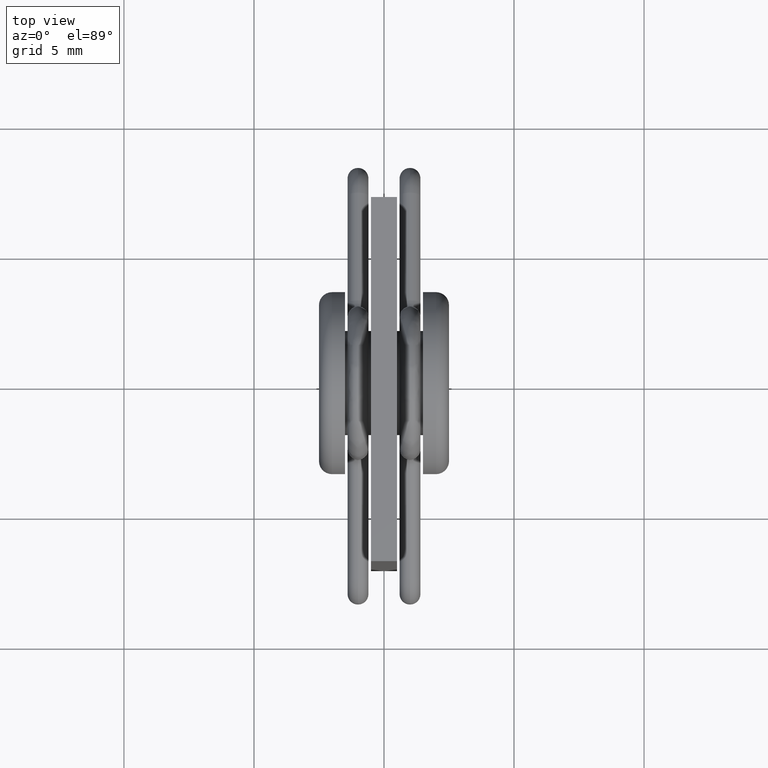
[diagram: clean part render]
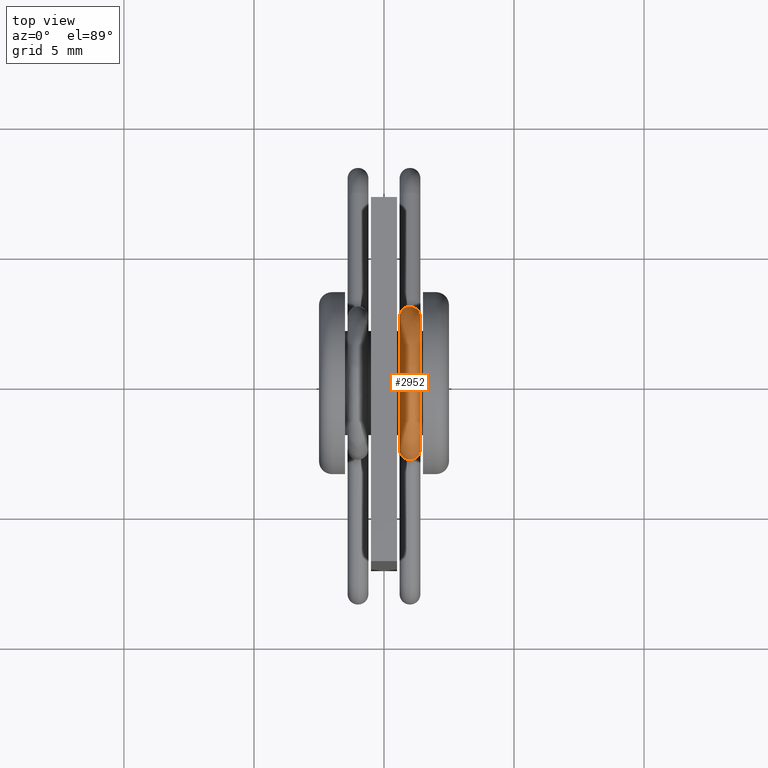
[diagram: same view with one face highlighted and labeled with its STEP entity id]
A machine part, top view. The second image highlights one B-rep face of the part: STEP entity #2952.
In plain terms, the highlighted face is a freeform B-spline surface patch.
Its self-contained STEP definition (entity closure, byte-faithful):
#6 = CARTESIAN_POINT ( 'NONE',  ( 0.6000000000000014211, -2.926749123719215362, 14.68788196319890993 ) ) ;
#23 = CARTESIAN_POINT ( 'NONE',  ( 0.6000000000000010880, -1.748657533117180085, 15.98895790059223998 ) ) ;
#26 = ORIENTED_EDGE ( 'NONE', *, *, #2583, .F. ) ;
#28 = CARTESIAN_POINT ( 'NONE',  ( 1.209500739106728506, -2.906440962441713793, 12.95308602758449723 ) ) ;
#38 = CARTESIAN_POINT ( 'NONE',  ( 0.6000000000000015321, -3.349999999999999645, 12.85609720141538048 ) ) ;
#60 = CARTESIAN_POINT ( 'NONE',  ( 1.400000000000001465, -3.349999999999999645, 12.78414580212309204 ) ) ;
#69 = B_SPLINE_CURVE_WITH_KNOTS ( 'NONE', 3,
 ( #2334, #1136, #2099, #3062, #895, #489, #429, #1393, #1222, #713, #1409, #221, #698, #1457, #664, #2889, #1915, #1169, #2637, #1945, #3104, #2649 ),
 .UNSPECIFIED., .F., .F.,
 ( 4, 2, 2, 2, 2, 2, 2, 2, 2, 2, 4 ),
 ( -1.974508153660675257E-15, 0.03124999999997585265, 0.06249999999995367594, 0.1249999999999093364, 0.2499999999998206435, 0.4999999999996432298, 0.7499999999994658717, 0.8749999999993771649, 0.9374999999993327560, 0.9687499999993106625, 0.9999999999992884581 ),
 .UNSPECIFIED. ) ;
#105 = CARTESIAN_POINT ( 'NONE',  ( 1.399999999999999467, 2.227823959846213953, 14.28480567347927810 ) ) ;
#144 = CARTESIAN_POINT ( 'NONE',  ( 1.400000000000000133, 0.6675863731873864504, 15.54999999999883897 ) ) ;
#147 = CARTESIAN_POINT ( 'NONE',  ( 1.400000000000000799, -2.039149600807420359, 14.56709498333545838 ) ) ;
#149 = CARTESIAN_POINT ( 'NONE',  ( 1.399999999999999911, 1.399416392711092083, 14.07545734150523309 ) ) ;
#158 = CARTESIAN_POINT ( 'NONE',  ( 1.400000000000001243, -2.227823959846194413, 14.28480567347972396 ) ) ;
#164 = CARTESIAN_POINT ( 'NONE',  ( 0.6000000000000013101, -2.550007053976310001, 12.92804881173416121 ) ) ;
#181 = CARTESIAN_POINT ( 'NONE',  ( 1.400000000000000799, -1.399416392711104740, 14.07545734150463801 ) ) ;
#197 = CARTESIAN_POINT ( 'NONE',  ( 0.5999999999999996447, 2.529478931371553330, 13.33348523255367368 ) ) ;
#210 = CARTESIAN_POINT ( 'NONE',  ( 0.5999999999999998668, 1.331067674462154571, 15.27517690940495854 ) ) ;
#221 = CARTESIAN_POINT ( 'NONE',  ( 0.6000000000000003109, -0.6675863731873799001, 15.55000000000115712 ) ) ;
#227 = CARTESIAN_POINT ( 'NONE',  ( 0.5999999999999995337, 2.517196728838231312, 13.41615929504400206 ) ) ;
#241 = CARTESIAN_POINT ( 'NONE',  ( 0.6000000000000000888, 0.8770252353637721932, 16.34999999999883613 ) ) ;
#255 = CARTESIAN_POINT ( 'NONE',  ( 1.399999999999999467, 3.178629614356397681, 14.08022694973947964 ) ) ;
#273 = CARTESIAN_POINT ( 'NONE',  ( 0.6000000000000014211, -3.323040949056790705, 13.43810805060967795 ) ) ;
#279 = CARTESIAN_POINT ( 'NONE',  ( 1.357154942148881327, -2.758277962741884082, 12.97258827055906139 ) ) ;
#287 = CARTESIAN_POINT ( 'NONE',  ( 1.399999999999999245, 3.350000000000000977, 12.78414580212309204 ) ) ;
#301 = CARTESIAN_POINT ( 'NONE',  ( 1.399999999999999467, 2.039149600807471430, 14.56709498333606234 ) ) ;
#322 = ORIENTED_EDGE ( 'NONE', *, *, #684, .T. ) ;
#324 = CARTESIAN_POINT ( 'NONE',  ( 1.400000000000000133, 0.4581475110110008742, 14.74999999999884004 ) ) ;
#353 = CARTESIAN_POINT ( 'NONE',  ( 1.400000000000000799, -2.039149600807420359, 14.56709498333545838 ) ) ;
#375 = CARTESIAN_POINT ( 'NONE',  ( 1.400000000000001021, -2.550000000000000266, 12.85609720141537871 ) ) ;
#390 = CARTESIAN_POINT ( 'NONE',  ( 1.399999999999999911, 1.693923247755019901, 13.45414849027617521 ) ) ;
#406 = CARTESIAN_POINT ( 'NONE',  ( 0.6000000000000013101, -2.549991795886060064, 13.08368269480380164 ) ) ;
#420 = CARTESIAN_POINT ( 'NONE',  ( 1.399999999999999467, 2.468288161014373205, 13.66175922868808001 ) ) ;
#423 = CARTESIAN_POINT ( 'NONE',  ( 0.6000000000000009770, -0.9134778158073049159, 14.56139591822010537 ) ) ;
#429 = CARTESIAN_POINT ( 'NONE',  ( 0.5999999999999996447, 2.419553885554823758, 13.82226230502555531 ) ) ;
#430 = CARTESIAN_POINT ( 'NONE',  ( 1.400000000000001021, -2.549991795886023649, 13.08368269480380164 ) ) ;
#439 = CARTESIAN_POINT ( 'NONE',  ( 1.400000000000000799, -1.747172501213716478, 13.11477711729564888 ) ) ;
#453 = CARTESIAN_POINT ( 'NONE',  ( 0.5999999999999995337, 2.550007053976279359, 12.92804881173416298 ) ) ;
#465 = CARTESIAN_POINT ( 'NONE',  ( 0.6000000000000010880, -1.528898795972884583, 13.88172938376054155 ) ) ;
#475 = CARTESIAN_POINT ( 'NONE',  ( 1.209049917906916072, 2.906912434163040793, 12.95302396940759948 ) ) ;
#482 = CARTESIAN_POINT ( 'NONE',  ( 1.399999999999999467, 2.419553885554860173, 13.82226230502555353 ) ) ;
#489 = CARTESIAN_POINT ( 'NONE',  ( 0.5999999999999995337, 2.468288161014373205, 13.66175922868808001 ) ) ;
#496 = CARTESIAN_POINT ( 'NONE',  ( 1.400000000000001243, -2.678882808903735757, 15.05873262516628230 ) ) ;
#512 = CARTESIAN_POINT ( 'NONE',  ( 0.6000000000000014211, -3.178629614356537569, 14.08022694973914213 ) ) ;
#529 = CARTESIAN_POINT ( 'NONE',  ( 1.400000000000001465, -3.344587359466229870, 13.21971619596604341 ) ) ;
#544 = CARTESIAN_POINT ( 'NONE',  ( 1.399999999999999467, 2.517196728838231312, 13.41615929504400206 ) ) ;
#564 = CARTESIAN_POINT ( 'NONE',  ( 1.399999999999999467, 2.039149600807471430, 14.56709498333606234 ) ) ;
#579 = CARTESIAN_POINT ( 'NONE',  ( 1.400000000000001243, -2.468288161014356330, 13.66175922868801251 ) ) ;
#590 = CARTESIAN_POINT ( 'NONE',  ( 1.400000000000001021, -2.529478931371552441, 13.33348523255365947 ) ) ;
#602 = CARTESIAN_POINT ( 'NONE',  ( 1.400000000000001021, -2.545879930339972841, 13.16724665663084792 ) ) ;
#607 = CARTESIAN_POINT ( 'NONE',  ( 1.400000000000001021, -2.545879930339972841, 13.16724665663084792 ) ) ;
#609 = ORIENTED_EDGE ( 'NONE', *, *, #2084, .T. ) ;
#616 = CARTESIAN_POINT ( 'NONE',  ( 1.400000000000001021, -2.550000000000000266, 12.85609720141537871 ) ) ;
#624 = CARTESIAN_POINT ( 'NONE',  ( 1.399999999999999245, 2.549991795886097368, 13.08368269480378920 ) ) ;
#636 = CARTESIAN_POINT ( 'NONE',  ( 1.400000000000000133, -0.6675863731873794560, 15.55000000000115712 ) ) ;
#640 = CARTESIAN_POINT ( 'NONE',  ( 0.6000000000000011990, -2.529478931371588857, 13.33348523255365947 ) ) ;
#653 = CARTESIAN_POINT ( 'NONE',  ( 1.399999999999998801, 2.549999999999999378, 12.99999999999999645 ) ) ;
#655 = CARTESIAN_POINT ( 'NONE',  ( 0.5999999999999997558, 1.693923247755001915, 13.45414849027617521 ) ) ;
#664 = CARTESIAN_POINT ( 'NONE',  ( 0.6000000000000011990, -2.227823959846050084, 14.28480567347972396 ) ) ;
#668 = CARTESIAN_POINT ( 'NONE',  ( 1.400000000000001021, -2.549999999999999822, 12.99999999999999822 ) ) ;
#674 = CARTESIAN_POINT ( 'NONE',  ( 0.6000000000000009770, -1.399416392711033463, 14.07545734150463801 ) ) ;
#684 = EDGE_CURVE ( 'NONE', #2092, #2263, #1524, .T. ) ;
#685 = CARTESIAN_POINT ( 'NONE',  ( 1.399999999999998801, 2.549999999999999378, 12.99999999999999645 ) ) ;
#691 = CARTESIAN_POINT ( 'NONE',  ( 0.5999999999999999778, 1.660478156753267154, 13.56429766031162742 ) ) ;
#698 = CARTESIAN_POINT ( 'NONE',  ( 0.6000000000000009770, -1.331067674462242278, 15.27517690940617356 ) ) ;
#707 = CARTESIAN_POINT ( 'NONE',  ( 0.6000000000000009770, -1.331067674462242278, 15.27517690940617356 ) ) ;
#713 = CARTESIAN_POINT ( 'NONE',  ( 0.5999999999999998668, 1.331067674462154571, 15.27517690940495854 ) ) ;
#720 = CARTESIAN_POINT ( 'NONE',  ( 1.400000000000001465, -3.323040949056754290, 13.43810805060967795 ) ) ;
#735 = CARTESIAN_POINT ( 'NONE',  ( 1.399999999999999467, 2.926749123719505796, 14.68788196319821715 ) ) ;
#751 = CARTESIAN_POINT ( 'NONE',  ( 0.5999999999999990896, 2.926749123719542212, 14.68788196319821715 ) ) ;
#770 = CARTESIAN_POINT ( 'NONE',  ( 1.399999999999999245, 3.323040949056754734, 13.43810805060969393 ) ) ;
#789 = CARTESIAN_POINT ( 'NONE',  ( 1.399999999999999245, 2.550007053976279359, 12.92804881173416298 ) ) ;
#838 = CARTESIAN_POINT ( 'NONE',  ( 1.399999999999999911, 1.735916913686352370, 13.22886241449765166 ) ) ;
#866 = CARTESIAN_POINT ( 'NONE',  ( 1.399999999999999467, 1.750004840964110242, 12.93933523953640652 ) ) ;
#872 = CARTESIAN_POINT ( 'NONE',  ( 1.400000000000001243, -2.468288161014356330, 13.66175922868801251 ) ) ;
#877 = CARTESIAN_POINT ( 'NONE',  ( 1.399999999999999467, 2.227823959846213953, 14.28480567347927810 ) ) ;
#884 = CARTESIAN_POINT ( 'NONE',  ( 1.399999999999999911, 1.727487951163464208, 13.28559951620664670 ) ) ;
#895 = CARTESIAN_POINT ( 'NONE',  ( 0.5999999999999995337, 2.517196728838231312, 13.41615929504400206 ) ) ;
#898 = CARTESIAN_POINT ( 'NONE',  ( 1.400000000000001243, -2.419553885554863726, 13.82226230502533859 ) ) ;
#904 = CARTESIAN_POINT ( 'NONE',  ( 1.400000000000000799, -1.750000000000000666, 12.78414580212309204 ) ) ;
#920 = CARTESIAN_POINT ( 'NONE',  ( 0.6000000000000004219, 0.4581475110110003746, 14.74999999999884004 ) ) ;
#936 = CARTESIAN_POINT ( 'NONE',  ( 1.399999999999998801, 2.549999999999999378, 12.99999999999999645 ) ) ;
#939 = CARTESIAN_POINT ( 'NONE',  ( 1.400000000000000799, -0.9134778158071594767, 14.56139591822010537 ) ) ;
#950 = CARTESIAN_POINT ( 'NONE',  ( 1.357678076555740798, 2.757733919338722917, 12.97265988112446777 ) ) ;
#956 = CARTESIAN_POINT ( 'NONE',  ( 0.6000000000000003109, -0.6675863731873799001, 15.55000000000115712 ) ) ;
#971 = CARTESIAN_POINT ( 'NONE',  ( 0.6000000000000013101, -2.550000000000000266, 12.78414580212309026 ) ) ;
#985 = CARTESIAN_POINT ( 'NONE',  ( 0.6000000000000015321, -3.349989222046398041, 13.09680935352846376 ) ) ;
#1006 = CARTESIAN_POINT ( 'NONE',  ( 1.399999999999999245, 3.349989222046435344, 13.09680935352846198 ) ) ;
#1022 = CARTESIAN_POINT ( 'NONE',  ( 0.6000000000000015321, -3.349999999999999645, 12.78414580212309204 ) ) ;
#1036 = CARTESIAN_POINT ( 'NONE',  ( 1.399999999999999467, 1.748657533117109475, 15.98895790059101252 ) ) ;
#1069 = CARTESIAN_POINT ( 'NONE',  ( 1.400000000000000799, -1.331067674462242278, 15.27517690940617356 ) ) ;
#1081 = CARTESIAN_POINT ( 'NONE',  ( 1.400000000000001243, -2.419553885554863726, 13.82226230502533859 ) ) ;
#1100 = CARTESIAN_POINT ( 'NONE',  ( 1.399999999999999245, 2.550000000000001155, 12.85609720141527745 ) ) ;
#1103 = VERTEX_POINT ( 'NONE', #2239 ) ;
#1110 = CARTESIAN_POINT ( 'NONE',  ( 1.399999999999999689, 2.545879930339978614, 13.16724665663081417 ) ) ;
#1126 = CARTESIAN_POINT ( 'NONE',  ( 1.399999999999999467, 2.419553885554860173, 13.82226230502555353 ) ) ;
#1128 = CARTESIAN_POINT ( 'NONE',  ( 1.399999999999999467, 1.749994369725758725, 13.07055603607911998 ) ) ;
#1136 = CARTESIAN_POINT ( 'NONE',  ( 0.5999999999999995337, 2.549991795886098256, 13.08368269480377855 ) ) ;
#1147 = CARTESIAN_POINT ( 'NONE',  ( 1.400000000000001243, -1.660478156753299350, 13.56429766031153683 ) ) ;
#1162 = CARTESIAN_POINT ( 'NONE',  ( 0.5999999999999999778, 1.750004840964110242, 12.93933523953640652 ) ) ;
#1163 = VERTEX_POINT ( 'NONE', #936 ) ;
#1169 = CARTESIAN_POINT ( 'NONE',  ( 0.6000000000000010880, -2.517196728838199782, 13.41615929504404825 ) ) ;
#1178 = CARTESIAN_POINT ( 'NONE',  ( 0.5999999999999999778, 1.750000000000001554, 12.78414580212309204 ) ) ;
#1191 = CARTESIAN_POINT ( 'NONE',  ( 1.400000000000000133, -0.4581475110109938798, 14.75000000000115818 ) ) ;
#1203 = CARTESIAN_POINT ( 'NONE',  ( 0.6000000000000011990, -2.419553885554936112, 13.82226230502533859 ) ) ;
#1216 = CARTESIAN_POINT ( 'NONE',  ( 0.5999999999999990896, 3.344587359466233867, 13.21971619596601677 ) ) ;
#1220 = CARTESIAN_POINT ( 'NONE',  ( 1.000000000000003997, -2.950003356577411306, 12.94735152788248023 ) ) ;
#1222 = CARTESIAN_POINT ( 'NONE',  ( 0.5999999999999998668, 2.039149600807470986, 14.56709498333606234 ) ) ;
#1230 = CARTESIAN_POINT ( 'NONE',  ( 0.5999999999999990896, 3.306905506512987980, 13.54671907388135743 ) ) ;
#1246 = CARTESIAN_POINT ( 'NONE',  ( 0.5999999999999990896, 3.323040949056754734, 13.43810805060969749 ) ) ;
#1261 = CARTESIAN_POINT ( 'NONE',  ( 1.399999999999999245, 3.306905506512997306, 13.54671907388135743 ) ) ;
#1276 = CARTESIAN_POINT ( 'NONE',  ( 0.6000000000000015321, -3.350009266988479784, 12.91676238393192833 ) ) ;
#1312 = CARTESIAN_POINT ( 'NONE',  ( 1.400000000000001021, -2.549991795886023649, 13.08368269480380164 ) ) ;
#1325 = CARTESIAN_POINT ( 'NONE',  ( 1.399999999999999245, 2.550000000000001155, 12.78414580212309026 ) ) ;
#1337 = CARTESIAN_POINT ( 'NONE',  ( 1.400000000000000799, -1.331067674462242278, 15.27517690940617356 ) ) ;
#1342 = CARTESIAN_POINT ( 'NONE',  ( 1.400000000000001021, -2.550000000000000266, 12.78414580212309026 ) ) ;
#1352 = CARTESIAN_POINT ( 'NONE',  ( 1.400000000000001243, -2.468288161014356330, 13.66175922868801251 ) ) ;
#1354 = CARTESIAN_POINT ( 'NONE',  ( 1.400000000000000133, 1.660478156753322443, 13.56429766031162742 ) ) ;
#1362 = VERTEX_POINT ( 'NONE', #1758 ) ;
#1370 = CARTESIAN_POINT ( 'NONE',  ( 0.6000000000000010880, -2.468288161014429605, 13.66175922868801251 ) ) ;
#1386 = CARTESIAN_POINT ( 'NONE',  ( 1.400000000000000799, -1.749994369725685450, 13.07055603607914307 ) ) ;
#1393 = CARTESIAN_POINT ( 'NONE',  ( 0.5999999999999996447, 2.227823959846285895, 14.28480567347927987 ) ) ;
#1402 = CARTESIAN_POINT ( 'NONE',  ( 0.6000000000000004219, -0.4581475110109943794, 14.75000000000115818 ) ) ;
#1409 = CARTESIAN_POINT ( 'NONE',  ( 0.6000000000000003109, 0.6675863731873860063, 15.54999999999883897 ) ) ;
#1417 = EDGE_CURVE ( 'NONE', #1163, #1362, #3020, .T. ) ;
#1418 = CARTESIAN_POINT ( 'NONE',  ( 0.5999999999999996447, 2.419553885554823758, 13.82226230502555531 ) ) ;
#1433 = CARTESIAN_POINT ( 'NONE',  ( 0.6000000000000010880, -1.750004840964140218, 12.93933523953639586 ) ) ;
#1449 = CARTESIAN_POINT ( 'NONE',  ( 0.5999999999999990896, 3.242653074273744274, 13.86936996709998660 ) ) ;
#1457 = CARTESIAN_POINT ( 'NONE',  ( 0.6000000000000009770, -2.039149600807420359, 14.56709498333545838 ) ) ;
#1466 = CARTESIAN_POINT ( 'NONE',  ( 0.5999999999999990896, 3.350009266988449141, 12.91676238393192300 ) ) ;
#1481 = CARTESIAN_POINT ( 'NONE',  ( 0.6000000000000014211, -3.242653074273796232, 13.86936996709993863 ) ) ;
#1498 = CARTESIAN_POINT ( 'NONE',  ( 1.400000000000001465, -3.349989222046362070, 13.09680935352846376 ) ) ;
#1516 = CARTESIAN_POINT ( 'NONE',  ( 1.399999999999999467, 2.468288161014373205, 13.66175922868808001 ) ) ;
#1524 = B_SPLINE_CURVE_WITH_KNOTS ( 'NONE', 3,
 ( #1959, #2919, #1711, #2672, #2333, #2885 ),
 .UNSPECIFIED., .F., .F.,
 ( 4, 2, 4 ),
 ( -7.861450877179241946E-06, 0.0003102793793427152821, 0.0006284202095626098637 ),
 .UNSPECIFIED. ) ;
#1536 = CARTESIAN_POINT ( 'NONE',  ( 1.399999999999999911, 0.9134778158072006660, 14.56139591821890811 ) ) ;
#1580 = CARTESIAN_POINT ( 'NONE',  ( 1.399999999999999467, 2.549991795886099144, 13.08368269480377322 ) ) ;
#1596 = CARTESIAN_POINT ( 'NONE',  ( 1.399999999999999467, 2.039149600807471430, 14.56709498333606234 ) ) ;
#1601 = CARTESIAN_POINT ( 'NONE',  ( 1.399999999999999467, 2.419553885554860173, 13.82226230502555353 ) ) ;
#1611 = CARTESIAN_POINT ( 'NONE',  ( 1.400000000000001243, -2.227823959846194413, 14.28480567347972396 ) ) ;
#1613 = CARTESIAN_POINT ( 'NONE',  ( 0.5999999999999995337, 2.468288161014373205, 13.66175922868808001 ) ) ;
#1628 = CARTESIAN_POINT ( 'NONE',  ( 1.400000000000001243, -1.528898795972956970, 13.88172938376054155 ) ) ;
#1648 = CARTESIAN_POINT ( 'NONE',  ( 1.400000000000000799, -1.750000000000000666, 12.85609720141538048 ) ) ;
#1662 = CARTESIAN_POINT ( 'NONE',  ( 0.6000000000000000888, 1.399416392711018808, 14.07545734150523309 ) ) ;
#1668 = CARTESIAN_POINT ( 'NONE',  ( 0.9999999999999965583, 2.950003356577393543, 12.94735152788241273 ) ) ;
#1674 = CARTESIAN_POINT ( 'NONE',  ( 0.6000000000000009770, -2.039149600807420359, 14.56709498333545838 ) ) ;
#1678 = CARTESIAN_POINT ( 'NONE',  ( 0.8952639853796517944, 2.950003356577392655, 12.94735152788241628 ) ) ;
#1691 = CARTESIAN_POINT ( 'NONE',  ( 1.399999999999999245, 2.550000000000001155, 12.78414580212309026 ) ) ;
#1708 = CARTESIAN_POINT ( 'NONE',  ( 1.399999999999999467, 2.678882808903851664, 15.05873262516689515 ) ) ;
#1711 = CARTESIAN_POINT ( 'NONE',  ( 0.6423640136638861797, -2.757796280353705498, 12.97265167295108057 ) ) ;
#1725 = CARTESIAN_POINT ( 'NONE',  ( 0.5999999999999990896, 3.178629614356379030, 14.08022694973947964 ) ) ;
#1742 = CARTESIAN_POINT ( 'NONE',  ( 1.400000000000001243, -1.748657533117323970, 15.98895790059223998 ) ) ;
#1758 = CARTESIAN_POINT ( 'NONE',  ( 1.400000000000001021, -2.549999999999999822, 12.99999999999999822 ) ) ;
#1759 = CARTESIAN_POINT ( 'NONE',  ( 1.399999999999999245, 2.549991795886097368, 13.08368269480378920 ) ) ;
#1790 = CARTESIAN_POINT ( 'NONE',  ( 1.399999999999999467, 2.545879930339977282, 13.16724665663082305 ) ) ;
#1815 = CARTESIAN_POINT ( 'NONE',  ( 1.400000000000000799, -2.039149600807420359, 14.56709498333545838 ) ) ;
#1820 = FACE_OUTER_BOUND ( 'NONE', #3131, .T. ) ;
#1825 = ORIENTED_EDGE ( 'NONE', *, *, #2853, .T. ) ;
#1835 = CARTESIAN_POINT ( 'NONE',  ( 1.399999999999999911, 1.747172501213720475, 13.11477711729563289 ) ) ;
#1853 = CARTESIAN_POINT ( 'NONE',  ( 0.6000000000000000888, 1.735916913686352370, 13.22886241449765166 ) ) ;
#1861 = CARTESIAN_POINT ( 'NONE',  ( 1.400000000000000799, -1.331067674462242278, 15.27517690940617356 ) ) ;
#1870 = CARTESIAN_POINT ( 'NONE',  ( 1.400000000000000799, -1.727487951163474644, 13.28559951620670176 ) ) ;
#1885 = CARTESIAN_POINT ( 'NONE',  ( 1.400000000000001021, -2.549991795886024537, 13.08368269480378210 ) ) ;
#1888 = CARTESIAN_POINT ( 'NONE',  ( 0.6000000000000010880, -1.693923247755062089, 13.45414849027608462 ) ) ;
#1891 = CARTESIAN_POINT ( 'NONE',  ( 0.9999999999999965583, 2.950003356577393543, 12.94735152788241273 ) ) ;
#1907 = CARTESIAN_POINT ( 'NONE',  ( 1.400000000000000799, -1.735916913686351037, 13.22886241449764455 ) ) ;
#1915 = CARTESIAN_POINT ( 'NONE',  ( 0.6000000000000010880, -2.468288161014429605, 13.66175922868801251 ) ) ;
#1920 = CARTESIAN_POINT ( 'NONE',  ( 1.400000000000000799, -1.693923247754989259, 13.45414849027608462 ) ) ;
#1928 = CARTESIAN_POINT ( 'NONE',  ( 1.399999999999999023, 2.653728820469327232, 12.98634897153978152 ) ) ;
#1936 = CARTESIAN_POINT ( 'NONE',  ( 0.5999999999999990896, 3.349989222046435344, 13.09680935352846198 ) ) ;
#1945 = CARTESIAN_POINT ( 'NONE',  ( 0.6000000000000011990, -2.545879930339749908, 13.16724665663273974 ) ) ;
#1955 = CARTESIAN_POINT ( 'NONE',  ( 1.399999999999999245, 3.350000000000000977, 12.85609720141527923 ) ) ;
#1959 = CARTESIAN_POINT ( 'NONE',  ( 0.6000000000000014211, -2.550000000001540812, 13.00000000000574474 ) ) ;
#1968 = CARTESIAN_POINT ( 'NONE',  ( 0.6000000000000000888, -0.8770252353637651987, 16.35000000000115605 ) ) ;
#1986 = CARTESIAN_POINT ( 'NONE',  ( 1.399999999999999245, 3.242653074273725622, 13.86936996709998660 ) ) ;
#1990 = CARTESIAN_POINT ( 'NONE',  ( 1.400000000000001243, -2.655217335071170748, 12.98615307848849554 ) ) ;
#1992 = CARTESIAN_POINT ( 'NONE',  ( 1.000000000000003997, -2.950003356577411306, 12.94735152788248023 ) ) ;
#2000 = CARTESIAN_POINT ( 'NONE',  ( 0.5999999999999990896, 3.350000000000000977, 12.85609720141527923 ) ) ;
#2045 = CARTESIAN_POINT ( 'NONE',  ( 1.400000000000001021, -2.550007053976341087, 12.92804881173416121 ) ) ;
#2059 = CARTESIAN_POINT ( 'NONE',  ( 1.400000000000001021, -2.545879930339974173, 13.16724665663083726 ) ) ;
#2063 = CARTESIAN_POINT ( 'NONE',  ( 1.399999999999999467, 2.468288161014373205, 13.66175922868808001 ) ) ;
#2073 = CARTESIAN_POINT ( 'NONE',  ( 1.400000000000001021, -2.529478931371552441, 13.33348523255365947 ) ) ;
#2084 = EDGE_CURVE ( 'NONE', #2719, #2092, #69, .T. ) ;
#2092 = VERTEX_POINT ( 'NONE', #2431 ) ;
#2099 = CARTESIAN_POINT ( 'NONE',  ( 0.5999999999999996447, 2.545879930339978170, 13.16724665663081950 ) ) ;
#2109 = CARTESIAN_POINT ( 'NONE',  ( 0.6000000000000000888, 1.747172501213720475, 13.11477711729563289 ) ) ;
#2128 = CARTESIAN_POINT ( 'NONE',  ( 0.5999999999999997558, 1.727487951163473534, 13.28559951620664670 ) ) ;
#2141 = CARTESIAN_POINT ( 'NONE',  ( 0.5999999999999999778, 1.749994369725758725, 13.07055603607911998 ) ) ;
#2146 = EDGE_CURVE ( 'NONE', #1103, #1163, #2411, .T. ) ;
#2156 = CARTESIAN_POINT ( 'NONE',  ( 0.5999999999999996447, 2.227823959846285895, 14.28480567347927987 ) ) ;
#2163 = CARTESIAN_POINT ( 'NONE',  ( 1.104664296533820478, 2.950003356577393543, 12.94735152788241273 ) ) ;
#2169 = CARTESIAN_POINT ( 'NONE',  ( 0.5999999999999995337, 2.550000000000001155, 12.85609720141527745 ) ) ;
#2182 = CARTESIAN_POINT ( 'NONE',  ( 0.6000000000000010880, -2.678882808903808144, 15.05873262516628230 ) ) ;
#2189 = CARTESIAN_POINT ( 'NONE',  ( 1.104718135162353843, -2.950003356577412195, 12.94735152788248556 ) ) ;
#2197 = CARTESIAN_POINT ( 'NONE',  ( 1.400000000000001465, -3.242653074273722957, 13.86936996709993863 ) ) ;
#2210 = ORIENTED_EDGE ( 'NONE', *, *, #2146, .F. ) ;
#2214 = CARTESIAN_POINT ( 'NONE',  ( 1.399999999999999245, 3.344587359466233867, 13.21971619596601677 ) ) ;
#2229 = CARTESIAN_POINT ( 'NONE',  ( 1.400000000000001465, -3.349999999999999645, 12.85609720141538048 ) ) ;
#2239 = CARTESIAN_POINT ( 'NONE',  ( 0.9999999999999965583, 2.950003356577393543, 12.94735152788241273 ) ) ;
#2243 = CARTESIAN_POINT ( 'NONE',  ( 1.399999999999999467, 2.529478931371553330, 13.33348523255367368 ) ) ;
#2263 = VERTEX_POINT ( 'NONE', #1992 ) ;
#2264 = CARTESIAN_POINT ( 'NONE',  ( 1.399999999999999467, 2.529478931371553330, 13.33348523255367368 ) ) ;
#2273 =( BOUNDED_SURFACE ( )  B_SPLINE_SURFACE ( 3, 3, ( 
 ( #1325, #1100, #2292, #624, #1790, #2264, #2312, #2063, #1601, #105, #564, #2996, #2786, #3007, #1069, #353, #2537, #1081, #579, #2523, #590, #607, #1312, #2045, #375, #1342 ),
 ( #3037, #2568, #866, #1128, #1835, #838, #884, #390, #1354, #2325, #149, #1536, #324, #1191, #939, #181, #1628, #1147, #1920, #1870, #1907, #439, #1386, #2882, #1648, #904 ),
 ( #1178, #2868, #1162, #2141, #2109, #1853, #2128, #655, #691, #2597, #1662, #3084, #920, #1402, #423, #674, #465, #2630, #1888, #3129, #2835, #2848, #2614, #1433, #2408, #2361 ),
 ( #2342, #2169, #453, #2376, #3096, #197, #227, #1613, #1418, #2156, #2392, #210, #3113, #956, #707, #1674, #2643, #1203, #1370, #2823, #640, #2582, #406, #164, #3070, #971 ),
 ( #2688, #2000, #1466, #1936, #1216, #1246, #1230, #1449, #1725, #751, #2437, #2422, #241, #1968, #23, #2182, #6, #512, #1481, #2453, #273, #2896, #985, #1276, #38, #1022 ),
 ( #287, #1955, #2915, #1006, #2214, #770, #1261, #1986, #255, #735, #1708, #1036, #2670, #2943, #1742, #496, #2964, #2706, #2197, #2927, #720, #529, #1498, #2470, #2229, #60 ),
 ( #1691, #2656, #789, #1759, #2722, #2243, #544, #1516, #482, #2492, #301, #3046, #144, #3032, #1861, #1815, #158, #2563, #872, #2843, #2780, #602, #430, #3063, #616, #2575 ) ),
 .UNSPECIFIED., .T., .F., .F. ) 
 B_SPLINE_SURFACE_WITH_KNOTS ( ( 4, 3, 4 ),
 ( 4, 2, 2, 2, 2, 2, 2, 2, 2, 2, 2, 2, 4 ),
 ( 0.000000000000000000, 0.5000000000000000000, 1.000000000000000000 ),
 ( -0.02686905146373682815, 0.000000000000000000, 0.03125000000000000000, 0.06250000000000000000, 0.1250000000000000000, 0.2500000000000000000, 0.5000000000000000000, 0.7500000000000000000, 0.8750000000000000000, 0.9375000000000000000, 0.9687500000000000000, 1.000000000000000000, 1.026869051463737748 ),
 .UNSPECIFIED. ) 
 GEOMETRIC_REPRESENTATION_ITEM ( )  RATIONAL_B_SPLINE_SURFACE ( (
 ( 1.000000000000000000, 1.000000000000000000, 1.000000000000000000, 1.000000000000000000, 1.000000000000000000, 1.000000000000000000, 1.000000000000000000, 1.000000000000000000, 1.000000000000000000, 1.000000000000000000, 1.000000000000000000, 1.000000000000000000, 1.000000000000000000, 1.000000000000000000, 1.000000000000000000, 1.000000000000000000, 1.000000000000000000, 1.000000000000000000, 1.000000000000000000, 1.000000000000000000, 1.000000000000000000, 1.000000000000000000, 1.000000000000000000, 1.000000000000000000, 1.000000000000000000, 1.000000000000000000),
 ( 0.3333333333333333703, 0.3333333333333333703, 0.3333333333333333703, 0.3333333333333333703, 0.3333333333333333703, 0.3333333333333333703, 0.3333333333333333703, 0.3333333333333333703, 0.3333333333333333703, 0.3333333333333333703, 0.3333333333333333703, 0.3333333333333333703, 0.3333333333333333703, 0.3333333333333333703, 0.3333333333333333703, 0.3333333333333333703, 0.3333333333333333703, 0.3333333333333333703, 0.3333333333333333703, 0.3333333333333333703, 0.3333333333333333703, 0.3333333333333333703, 0.3333333333333333703, 0.3333333333333333703, 0.3333333333333333703, 0.3333333333333333703),
 ( 0.3333333333333333703, 0.3333333333333333703, 0.3333333333333333703, 0.3333333333333333703, 0.3333333333333333703, 0.3333333333333333703, 0.3333333333333333703, 0.3333333333333333703, 0.3333333333333333703, 0.3333333333333333703, 0.3333333333333333703, 0.3333333333333333703, 0.3333333333333333703, 0.3333333333333333703, 0.3333333333333333703, 0.3333333333333333703, 0.3333333333333333703, 0.3333333333333333703, 0.3333333333333333703, 0.3333333333333333703, 0.3333333333333333703, 0.3333333333333333703, 0.3333333333333333703, 0.3333333333333333703, 0.3333333333333333703, 0.3333333333333333703),
 ( 1.000000000000000000, 1.000000000000000000, 1.000000000000000000, 1.000000000000000000, 1.000000000000000000, 1.000000000000000000, 1.000000000000000000, 1.000000000000000000, 1.000000000000000000, 1.000000000000000000, 1.000000000000000000, 1.000000000000000000, 1.000000000000000000, 1.000000000000000000, 1.000000000000000000, 1.000000000000000000, 1.000000000000000000, 1.000000000000000000, 1.000000000000000000, 1.000000000000000000, 1.000000000000000000, 1.000000000000000000, 1.000000000000000000, 1.000000000000000000, 1.000000000000000000, 1.000000000000000000),
 ( 0.3333333333333333703, 0.3333333333333333703, 0.3333333333333333703, 0.3333333333333333703, 0.3333333333333333703, 0.3333333333333333703, 0.3333333333333333703, 0.3333333333333333703, 0.3333333333333333703, 0.3333333333333333703, 0.3333333333333333703, 0.3333333333333333703, 0.3333333333333333703, 0.3333333333333333703, 0.3333333333333333703, 0.3333333333333333703, 0.3333333333333333703, 0.3333333333333333703, 0.3333333333333333703, 0.3333333333333333703, 0.3333333333333333703, 0.3333333333333333703, 0.3333333333333333703, 0.3333333333333333703, 0.3333333333333333703, 0.3333333333333333703),
 ( 0.3333333333333333703, 0.3333333333333333703, 0.3333333333333333703, 0.3333333333333333703, 0.3333333333333333703, 0.3333333333333333703, 0.3333333333333333703, 0.3333333333333333703, 0.3333333333333333703, 0.3333333333333333703, 0.3333333333333333703, 0.3333333333333333703, 0.3333333333333333703, 0.3333333333333333703, 0.3333333333333333703, 0.3333333333333333703, 0.3333333333333333703, 0.3333333333333333703, 0.3333333333333333703, 0.3333333333333333703, 0.3333333333333333703, 0.3333333333333333703, 0.3333333333333333703, 0.3333333333333333703, 0.3333333333333333703, 0.3333333333333333703),
 ( 1.000000000000000000, 1.000000000000000000, 1.000000000000000000, 1.000000000000000000, 1.000000000000000000, 1.000000000000000000, 1.000000000000000000, 1.000000000000000000, 1.000000000000000000, 1.000000000000000000, 1.000000000000000000, 1.000000000000000000, 1.000000000000000000, 1.000000000000000000, 1.000000000000000000, 1.000000000000000000, 1.000000000000000000, 1.000000000000000000, 1.000000000000000000, 1.000000000000000000, 1.000000000000000000, 1.000000000000000000, 1.000000000000000000, 1.000000000000000000, 1.000000000000000000, 1.000000000000000000) ) ) 
 REPRESENTATION_ITEM ( '' )  SURFACE ( )  );
#2292 = CARTESIAN_POINT ( 'NONE',  ( 1.399999999999999245, 2.550007053976279359, 12.92804881173416298 ) ) ;
#2312 = CARTESIAN_POINT ( 'NONE',  ( 1.399999999999999467, 2.517196728838231312, 13.41615929504400206 ) ) ;
#2325 = CARTESIAN_POINT ( 'NONE',  ( 1.400000000000000133, 1.528898795972921665, 13.88172938376033905 ) ) ;
#2333 = CARTESIAN_POINT ( 'NONE',  ( 0.8953535829243053357, -2.950003356577409974, 12.94735152788247490 ) ) ;
#2334 = CARTESIAN_POINT ( 'NONE',  ( 0.5999999999999994227, 2.550000000000001155, 13.00000000000000711 ) ) ;
#2342 = CARTESIAN_POINT ( 'NONE',  ( 0.5999999999999995337, 2.550000000000001155, 12.78414580212309026 ) ) ;
#2361 = CARTESIAN_POINT ( 'NONE',  ( 0.6000000000000010880, -1.750000000000000666, 12.78414580212309204 ) ) ;
#2376 = CARTESIAN_POINT ( 'NONE',  ( 0.5999999999999995337, 2.549991795886097368, 13.08368269480378920 ) ) ;
#2392 = CARTESIAN_POINT ( 'NONE',  ( 0.5999999999999998668, 2.039149600807470986, 14.56709498333606234 ) ) ;
#2397 = CARTESIAN_POINT ( 'NONE',  ( 0.5999999999999990896, 2.653799897548952735, 12.98633961758106281 ) ) ;
#2408 = CARTESIAN_POINT ( 'NONE',  ( 0.6000000000000010880, -1.750000000000000666, 12.85609720141538048 ) ) ;
#2411 = B_SPLINE_CURVE_WITH_KNOTS ( 'NONE', 3,
 ( #1668, #2163, #475, #950, #1928, #685 ),
 .UNSPECIFIED., .F., .F.,
 ( 4, 2, 4 ),
 ( 0.0006202787209370994471, 0.0009341337470515172952, 0.001247988773165935143 ),
 .UNSPECIFIED. ) ;
#2422 = CARTESIAN_POINT ( 'NONE',  ( 0.5999999999999994227, 1.748657533116964036, 15.98895790059101252 ) ) ;
#2427 = CARTESIAN_POINT ( 'NONE',  ( 1.400000000000001021, -2.549999999999999822, 12.99999999999999822 ) ) ;
#2431 = CARTESIAN_POINT ( 'NONE',  ( 0.6000000000000014211, -2.550000000001540812, 13.00000000000574474 ) ) ;
#2437 = CARTESIAN_POINT ( 'NONE',  ( 0.5999999999999994227, 2.678882808903923163, 15.05873262516689515 ) ) ;
#2453 = CARTESIAN_POINT ( 'NONE',  ( 0.6000000000000014211, -3.306905506512958670, 13.54671907388139473 ) ) ;
#2470 = CARTESIAN_POINT ( 'NONE',  ( 1.400000000000001465, -3.350009266988510870, 12.91676238393192833 ) ) ;
#2492 = CARTESIAN_POINT ( 'NONE',  ( 1.399999999999999467, 2.227823959846213953, 14.28480567347927810 ) ) ;
#2523 = CARTESIAN_POINT ( 'NONE',  ( 1.400000000000001243, -2.517196728838234865, 13.41615929504404825 ) ) ;
#2537 = CARTESIAN_POINT ( 'NONE',  ( 1.400000000000001243, -2.227823959846194413, 14.28480567347972396 ) ) ;
#2547 = CARTESIAN_POINT ( 'NONE',  ( 1.399999999999999467, 2.529478931371553330, 13.33348523255367368 ) ) ;
#2562 = B_SPLINE_CURVE_WITH_KNOTS ( 'NONE', 3,
 ( #1220, #2189, #28, #279, #1990, #2427 ),
 .UNSPECIFIED., .F., .F.,
 ( 4, 2, 4 ),
 ( 0.0006284202095626098637, 0.0009467790735410065326, 0.001265137937519403202 ),
 .UNSPECIFIED. ) ;
#2563 = CARTESIAN_POINT ( 'NONE',  ( 1.400000000000001243, -2.419553885554863726, 13.82226230502533859 ) ) ;
#2568 = CARTESIAN_POINT ( 'NONE',  ( 1.399999999999999467, 1.750000000000001554, 12.85609720141527923 ) ) ;
#2575 = CARTESIAN_POINT ( 'NONE',  ( 1.400000000000001021, -2.550000000000000266, 12.78414580212309026 ) ) ;
#2582 = CARTESIAN_POINT ( 'NONE',  ( 0.6000000000000011990, -2.545879930339936426, 13.16724665663084792 ) ) ;
#2583 = EDGE_CURVE ( 'NONE', #2719, #1103, #3005, .T. ) ;
#2597 = CARTESIAN_POINT ( 'NONE',  ( 0.5999999999999999778, 1.528898795973029134, 13.88172938376033905 ) ) ;
#2602 = CARTESIAN_POINT ( 'NONE',  ( 0.5999999999999994227, 2.550000000000001155, 13.00000000000000711 ) ) ;
#2614 = CARTESIAN_POINT ( 'NONE',  ( 0.6000000000000010880, -1.749994369725721421, 13.07055603607914307 ) ) ;
#2619 = CARTESIAN_POINT ( 'NONE',  ( 0.7904648936802524117, 2.906426318762784788, 12.95308795530054979 ) ) ;
#2630 = CARTESIAN_POINT ( 'NONE',  ( 0.6000000000000010880, -1.660478156753335321, 13.56429766031153683 ) ) ;
#2637 = CARTESIAN_POINT ( 'NONE',  ( 0.6000000000000011990, -2.529478931371588857, 13.33348523255365947 ) ) ;
#2643 = CARTESIAN_POINT ( 'NONE',  ( 0.6000000000000011990, -2.227823959846050084, 14.28480567347972396 ) ) ;
#2649 = CARTESIAN_POINT ( 'NONE',  ( 0.6000000000000014211, -2.550000000001540812, 13.00000000000574474 ) ) ;
#2656 = CARTESIAN_POINT ( 'NONE',  ( 1.399999999999999245, 2.550000000000001155, 12.85609720141527745 ) ) ;
#2662 = CARTESIAN_POINT ( 'NONE',  ( 0.5999999999999994227, 2.550000000000001155, 13.00000000000000711 ) ) ;
#2670 = CARTESIAN_POINT ( 'NONE',  ( 1.400000000000000133, 0.8770252353637727483, 16.34999999999883613 ) ) ;
#2672 = CARTESIAN_POINT ( 'NONE',  ( 0.7909841653094134006, -2.906926518334141285, 12.95302211533488190 ) ) ;
#2688 = CARTESIAN_POINT ( 'NONE',  ( 0.5999999999999990896, 3.350000000000000977, 12.78414580212309204 ) ) ;
#2706 = CARTESIAN_POINT ( 'NONE',  ( 1.400000000000001465, -3.178629614356428323, 14.08022694973914213 ) ) ;
#2719 = VERTEX_POINT ( 'NONE', #2602 ) ;
#2722 = CARTESIAN_POINT ( 'NONE',  ( 1.399999999999999467, 2.545879930339977282, 13.16724665663082305 ) ) ;
#2780 = CARTESIAN_POINT ( 'NONE',  ( 1.400000000000001021, -2.529478931371552441, 13.33348523255365947 ) ) ;
#2786 = CARTESIAN_POINT ( 'NONE',  ( 1.400000000000000133, 0.6675863731873864504, 15.54999999999883897 ) ) ;
#2799 = CARTESIAN_POINT ( 'NONE',  ( 1.399999999999999467, 2.517196728838231312, 13.41615929504400206 ) ) ;
#2823 = CARTESIAN_POINT ( 'NONE',  ( 0.6000000000000010880, -2.517196728838199782, 13.41615929504404825 ) ) ;
#2835 = CARTESIAN_POINT ( 'NONE',  ( 0.6000000000000010880, -1.735916913686387231, 13.22886241449764455 ) ) ;
#2843 = CARTESIAN_POINT ( 'NONE',  ( 1.400000000000001243, -2.517196728838234865, 13.41615929504404825 ) ) ;
#2848 = CARTESIAN_POINT ( 'NONE',  ( 0.6000000000000010880, -1.747172501213680285, 13.11477711729564888 ) ) ;
#2853 = EDGE_CURVE ( 'NONE', #2263, #1362, #2562, .T. ) ;
#2868 = CARTESIAN_POINT ( 'NONE',  ( 0.5999999999999999778, 1.750000000000001554, 12.85609720141527923 ) ) ;
#2882 = CARTESIAN_POINT ( 'NONE',  ( 1.400000000000000799, -1.750004840964171526, 12.93933523953639586 ) ) ;
#2885 = CARTESIAN_POINT ( 'NONE',  ( 1.000000000000003997, -2.950003356577411306, 12.94735152788248023 ) ) ;
#2889 = CARTESIAN_POINT ( 'NONE',  ( 0.6000000000000011990, -2.419553885554936112, 13.82226230502533859 ) ) ;
#2896 = CARTESIAN_POINT ( 'NONE',  ( 0.6000000000000014211, -3.344587359466193455, 13.21971619596604341 ) ) ;
#2903 = CARTESIAN_POINT ( 'NONE',  ( 0.6428037988113332046, 2.758216709405812317, 12.97259633293496783 ) ) ;
#2915 = CARTESIAN_POINT ( 'NONE',  ( 1.399999999999999245, 3.350009266988449141, 12.91676238393192300 ) ) ;
#2919 = CARTESIAN_POINT ( 'NONE',  ( 0.6000000000000015321, -2.655145275089584089, 12.98616256172616978 ) ) ;
#2927 = CARTESIAN_POINT ( 'NONE',  ( 1.400000000000001465, -3.306905506512994197, 13.54671907388139473 ) ) ;
#2943 = CARTESIAN_POINT ( 'NONE',  ( 1.400000000000000133, -0.8770252353637648657, 16.35000000000115605 ) ) ;
#2952 = ADVANCED_FACE ( 'NONE', ( #1820 ), #2273, .F. ) ;
#2964 = CARTESIAN_POINT ( 'NONE',  ( 1.400000000000001465, -2.926749123719432522, 14.68788196319890993 ) ) ;
#2996 = CARTESIAN_POINT ( 'NONE',  ( 1.399999999999999467, 1.331067674462155015, 15.27517690940495854 ) ) ;
#3005 = B_SPLINE_CURVE_WITH_KNOTS ( 'NONE', 3,
 ( #2662, #2397, #2903, #2619, #1678, #1891 ),
 .UNSPECIFIED., .F., .F.,
 ( 4, 2, 4 ),
 ( -7.861450877186860160E-06, 0.0003062086350299563333, 0.0006202787209370994471 ),
 .UNSPECIFIED. ) ;
#3007 = CARTESIAN_POINT ( 'NONE',  ( 1.400000000000000133, -0.6675863731873794560, 15.55000000000115712 ) ) ;
#3016 = ORIENTED_EDGE ( 'NONE', *, *, #1417, .F. ) ;
#3020 = B_SPLINE_CURVE_WITH_KNOTS ( 'NONE', 3,
 ( #653, #1580, #1110, #2547, #2799, #420, #1126, #877, #1596, #3080, #3066, #636, #1337, #147, #1611, #898, #1352, #3050, #2073, #2059, #1885, #668 ),
 .UNSPECIFIED., .F., .F.,
 ( 4, 2, 2, 2, 2, 2, 2, 2, 2, 2, 4 ),
 ( -3.700467538550919716E-15, 0.03124999999999653402, 0.06249999999999677341, 0.1249999999999972383, 0.2499999999999981959, 0.5000000000000001110, 0.7500000000000019984, 0.8750000000000029976, 0.9375000000000034417, 0.9687500000000036637, 1.000000000000003775 ),
 .UNSPECIFIED. ) ;
#3032 = CARTESIAN_POINT ( 'NONE',  ( 1.400000000000000133, -0.6675863731873794560, 15.55000000000115712 ) ) ;
#3037 = CARTESIAN_POINT ( 'NONE',  ( 1.399999999999999467, 1.750000000000001554, 12.78414580212309204 ) ) ;
#3046 = CARTESIAN_POINT ( 'NONE',  ( 1.399999999999999467, 1.331067674462155015, 15.27517690940495854 ) ) ;
#3050 = CARTESIAN_POINT ( 'NONE',  ( 1.400000000000001243, -2.517196728838234865, 13.41615929504404825 ) ) ;
#3062 = CARTESIAN_POINT ( 'NONE',  ( 0.5999999999999996447, 2.529478931371553330, 13.33348523255367368 ) ) ;
#3063 = CARTESIAN_POINT ( 'NONE',  ( 1.400000000000001021, -2.550007053976341087, 12.92804881173416121 ) ) ;
#3066 = CARTESIAN_POINT ( 'NONE',  ( 1.400000000000000133, 0.6675863731873864504, 15.54999999999883897 ) ) ;
#3070 = CARTESIAN_POINT ( 'NONE',  ( 0.6000000000000013101, -2.550000000000000266, 12.85609720141537871 ) ) ;
#3080 = CARTESIAN_POINT ( 'NONE',  ( 1.399999999999999467, 1.331067674462155015, 15.27517690940495854 ) ) ;
#3084 = CARTESIAN_POINT ( 'NONE',  ( 0.6000000000000000888, 0.9134778158073445509, 14.56139591821890811 ) ) ;
#3096 = CARTESIAN_POINT ( 'NONE',  ( 0.5999999999999996447, 2.545879930339977282, 13.16724665663082305 ) ) ;
#3104 = CARTESIAN_POINT ( 'NONE',  ( 0.6000000000000013101, -2.549991795885872659, 13.08368269480760482 ) ) ;
#3113 = CARTESIAN_POINT ( 'NONE',  ( 0.6000000000000003109, 0.6675863731873860063, 15.54999999999883897 ) ) ;
#3129 = CARTESIAN_POINT ( 'NONE',  ( 0.6000000000000010880, -1.727487951163439561, 13.28559951620670176 ) ) ;
#3131 = EDGE_LOOP ( 'NONE', ( #26, #609, #322, #1825, #3016, #2210 ) ) ;